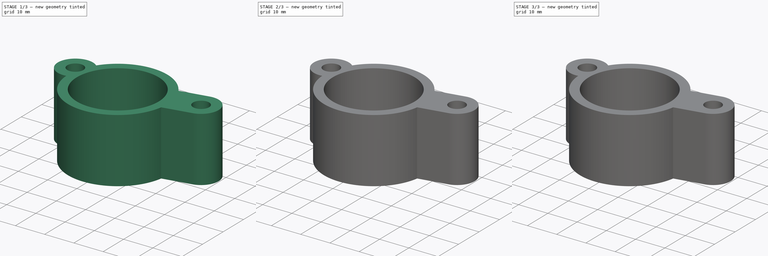
[diagram: build sequence overview — one tinted view per stage of 3, left to right]
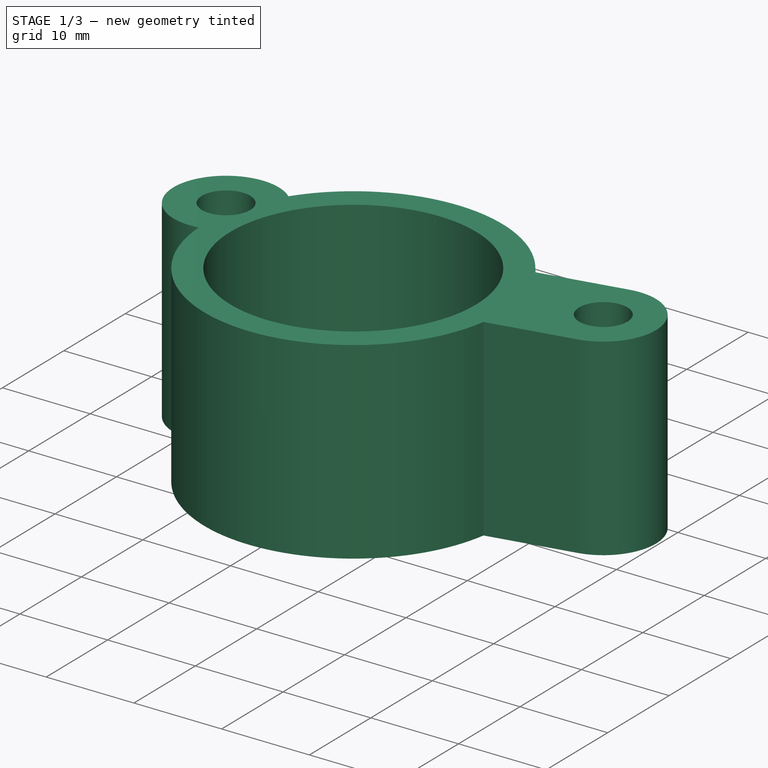
[diagram: stage 1 of 3 — iso view after this stage's code; geometry added in this stage tinted green]
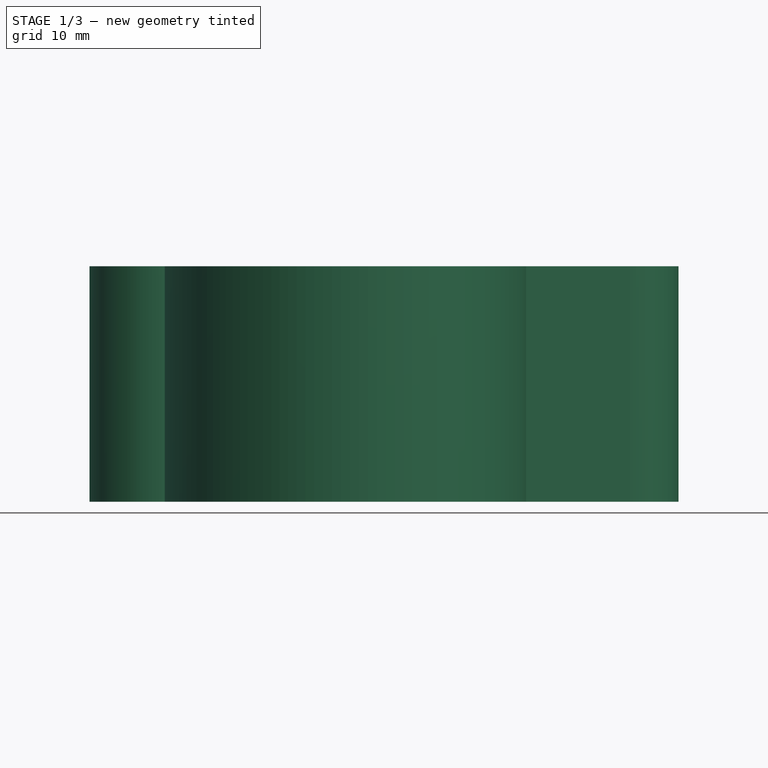
[diagram: stage 1 of 3 — front view after this stage's code; geometry added in this stage tinted green]
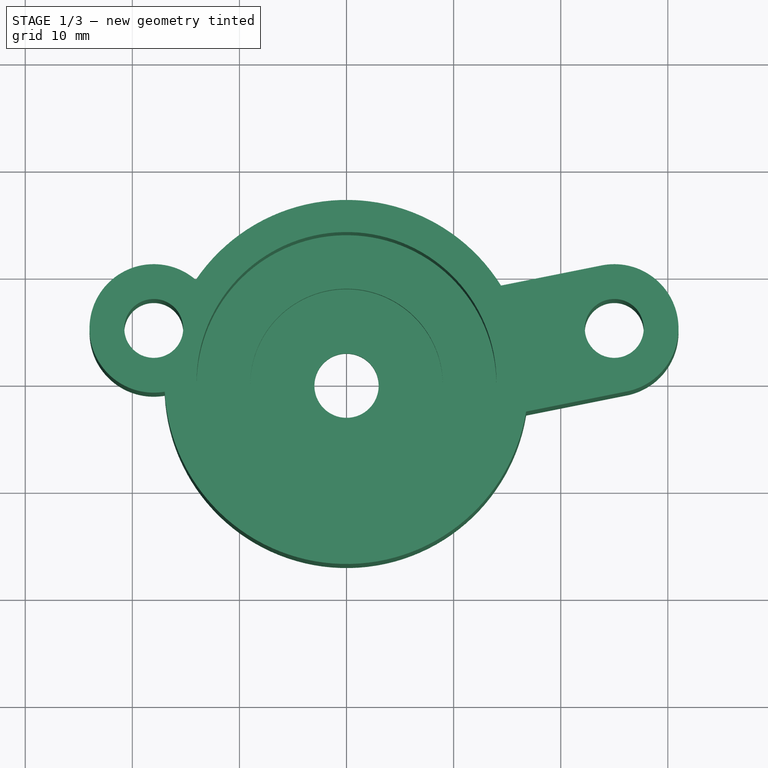
[diagram: stage 1 of 3 — top view after this stage's code; geometry added in this stage tinted green]
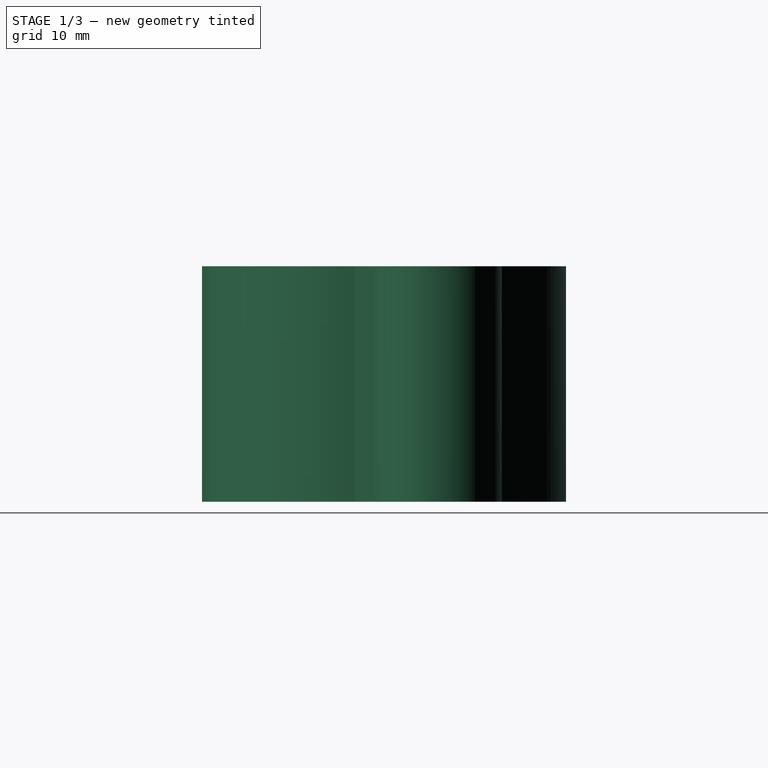
[diagram: stage 1 of 3 — right view after this stage's code; geometry added in this stage tinted green]
FCSTD DOCUMENT  (FreeCAD 0.19R24276 (Git))
Label: Encoder_holder_V3
License: All rights reserved
LicenseURL: http://en.wikipedia.org/wiki/All_rights_reserved
objects: Sketcher::SketchObject×5, PartDesign::Pad×4, PartDesign::Chamfer×2, PartDesign::Pocket×1, PartDesign::Fillet×1, PartDesign::Body×1
note: 22 computed .brp shape members not serialized (recipe doc carries the construction recipe); baked Part::Feature solids carry a one-line shape summary decoded from their .brp

FEATURE [Sketcher::SketchObject] Sketch  label="Sketch_L80x120"
  FullyConstrained = false
  MapMode = 5
  Support = -> [XY_Plane]
  sketch-geometry (20):
    g0: Circle CenterX=0 CenterY=0 CenterZ=0 NormalX=0 NormalY=0 NormalZ=1 AngleXU=0 Radius=14
    g1: LineSegment StartX=55 StartY=10 StartZ=0 EndX=-25 EndY=10 EndZ=0
    g2: Circle CenterX=-10 CenterY=33 CenterZ=0 NormalX=0 NormalY=0 NormalZ=1 AngleXU=0 Radius=3
    g3: Circle CenterX=40 CenterY=33 CenterZ=0 NormalX=0 NormalY=0 NormalZ=1 AngleXU=0 Radius=3
    g4: Circle CenterX=0 CenterY=0 CenterZ=0 NormalX=0 NormalY=0 NormalZ=1 AngleXU=0 Radius=16.5
    g5: LineSegment StartX=-25 StartY=-30 StartZ=0 EndX=35 EndY=-30 EndZ=0
    g6: LineSegment StartX=35 StartY=-30 StartZ=0 EndX=35 EndY=10 EndZ=0
    g7: LineSegment StartX=35 StartY=10 StartZ=0 EndX=55 EndY=10 EndZ=0
    g8: Circle CenterX=25 CenterY=5 CenterZ=0 NormalX=0 NormalY=0 NormalZ=1 AngleXU=0 Radius=2.75
    g9: Circle CenterX=-18 CenterY=5 CenterZ=0 NormalX=0 NormalY=0 NormalZ=1 AngleXU=0 Radius=2.75
    g10: LineSegment StartX=-25 StartY=-30 StartZ=0 EndX=-25 EndY=34.1155 EndZ=0
    g11: LineSegment StartX=55 StartY=10 StartZ=0 EndX=55 EndY=18.052 EndZ=0
    g12: ArcOfCircle CenterX=-18 CenterY=5 CenterZ=0 NormalX=0 NormalY=0 NormalZ=1 AngleXU=0 Radius=6 StartAngle=0.857316 EndAngle=4.88398
    g13: ArcOfCircle CenterX=25 CenterY=5 CenterZ=0 NormalX=0 NormalY=0 NormalZ=1 AngleXU=0 Radius=6 StartAngle=4.90978 EndAngle=8.05138
    g14: ArcOfCircle CenterX=0 CenterY=0 CenterZ=0 NormalX=0 NormalY=0 NormalZ=1 AngleXU=0 Radius=17 StartAngle=0.558108 EndAngle=2.54603
    g15: LineSegment StartX=23.8233 StartY=10.8835 StartZ=0 EndX=14.4204 EndY=9.0029 EndZ=0
    g16: LineSegment StartX=16.7738 StartY=-2.76407 StartZ=0 EndX=26.1767 EndY=-0.883484 EndZ=0
    g17: LineSegment StartX=25 StartY=5 StartZ=0 EndX=0 EndY=0 EndZ=0
    g18: LineSegment StartX=25 StartY=5 StartZ=0 EndX=26.1767 EndY=-0.883484 EndZ=0
    g19: ArcOfCircle CenterX=0 CenterY=0 CenterZ=0 NormalX=0 NormalY=0 NormalZ=1 AngleXU=0 Radius=17 StartAngle=3.19526 EndAngle=6.11987
  constraints (54):
    c: Diameter(g0) = 28
    c: Horizontal(g1)
    c: Horizontal(g2,g3)
    c: Diameter(g2) = 6
    c: Equal(g2,g3)
    c: DistanceX(g3,g1) = 15
    c: DistanceX(g1,g2) = 15
    c: Coincident(g4,g0)
    c: Horizontal(g5)
    c: Coincident(g6,g5)
    c: Vertical(g6)
    c: Coincident(g7,g6)
    c: Horizontal(g7)
    c: DistanceX(g7,g7) = 20
    c: Diameter(g8) = 5.5
    c: DistanceX(g8,g5) = 10
    c: DistanceY(g0,g8) = 5
    c: Equal(g9,g8)
    c: Horizontal(g9,g8)
    c: DistanceX(g9,g0) = 18
    c: Coincident(g10,g5)
    c: Vertical(g10)
    c: Coincident(g11,g7)
    c: Vertical(g11)
    c: DistanceY(g0,g6) = 10
    c: Horizontal(g1,g6)
    c: DistanceY(g0,g2) = 33
    c: DistanceY(g5,g0) = 30
    c: DistanceX(g9,g8) = 43
    c: DistanceX(g9,g2) = 8
    c: DistanceX(g2,g3) = 50
    c: Coincident(g0,g-1)
    c: Diameter(g4) = 33
    c: Coincident(g12,g9)
    c: Diameter(g12) = 12
    c: Coincident(g13,g8)
    c: Equal(g13,g12)
    c: Coincident(g14,g0)
    c: Diameter(g14) = 34
    c: Coincident(g17,g8)
    c: Coincident(g17,g0)
    c: Parallel(g15,g17)
    c: Parallel(g16,g17)
    c: Coincident(g18,g8)
    c: Coincident(g18,g16)
    c: Perpendicular(g18,g16)
    c: Coincident(g14,g15)
    c: Coincident(g19,g16)
    c: Coincident(g13,g16)
    c: Equal(g14,g19)
    c: Coincident(g14,g12)
    c: Coincident(g14,g19)
    c: Tangent(g13,g15) = -1.5708
    c: Coincident(g12,g19)
FEATURE [PartDesign::Pad] Pad  label="Pad_h17"
  Direction = (1,1,1)
  Length = 17
  Length2 = 100
  Profile = -> Sketch
  Reversed = true
  Type = 0
FEATURE [Sketcher::SketchObject] Sketch001  label="Sketch_1"
  AttachmentOffset = pos=(0,0,-17) rot=(0,0,1;0rad)
  FullyConstrained = false
  MapMode = 5
  Placement = pos=(0,0,-17) rot=(0,0,1;0rad)
  Support = -> [XY_Plane]
  sketch-geometry (20):
    g0: Circle CenterX=0 CenterY=0 CenterZ=0 NormalX=0 NormalY=0 NormalZ=1 AngleXU=0 Radius=9
    g1: LineSegment StartX=55 StartY=10 StartZ=0 EndX=-25 EndY=10 EndZ=0
    g2: Circle CenterX=-10 CenterY=33 CenterZ=0 NormalX=0 NormalY=0 NormalZ=1 AngleXU=0 Radius=3
    g3: Circle CenterX=40 CenterY=33 CenterZ=0 NormalX=0 NormalY=0 NormalZ=1 AngleXU=0 Radius=3
    g4: Circle CenterX=0 CenterY=0 CenterZ=0 NormalX=0 NormalY=0 NormalZ=1 AngleXU=0 Radius=16.5
    g5: LineSegment StartX=-25 StartY=-30 StartZ=0 EndX=35 EndY=-30 EndZ=0
    g6: LineSegment StartX=35 StartY=-30 StartZ=0 EndX=35 EndY=10 EndZ=0
    g7: LineSegment StartX=35 StartY=10 StartZ=0 EndX=55 EndY=10 EndZ=0
    g8: Circle CenterX=25 CenterY=5 CenterZ=0 NormalX=0 NormalY=0 NormalZ=1 AngleXU=0 Radius=2.75
    g9: Circle CenterX=-18 CenterY=5 CenterZ=0 NormalX=0 NormalY=0 NormalZ=1 AngleXU=0 Radius=2.75
    g10: LineSegment StartX=-25 StartY=-30 StartZ=0 EndX=-25 EndY=34.1155 EndZ=0
    g11: LineSegment StartX=55 StartY=10 StartZ=0 EndX=55 EndY=18.052 EndZ=0
    g12: ArcOfCircle CenterX=-18 CenterY=5 CenterZ=0 NormalX=0 NormalY=0 NormalZ=1 AngleXU=0 Radius=6 StartAngle=0.857316 EndAngle=4.88398
    g13: ArcOfCircle CenterX=25 CenterY=5 CenterZ=0 NormalX=0 NormalY=0 NormalZ=1 AngleXU=0 Radius=6 StartAngle=4.90978 EndAngle=8.05138
    g14: ArcOfCircle CenterX=0 CenterY=0 CenterZ=0 NormalX=0 NormalY=0 NormalZ=1 AngleXU=0 Radius=17 StartAngle=0.558108 EndAngle=2.54603
    g15: LineSegment StartX=23.8233 StartY=10.8835 StartZ=0 EndX=14.4204 EndY=9.0029 EndZ=0
    g16: LineSegment StartX=16.7738 StartY=-2.76407 StartZ=0 EndX=26.1767 EndY=-0.883484 EndZ=0
    g17: LineSegment StartX=25 StartY=5 StartZ=0 EndX=0 EndY=0 EndZ=0
    g18: LineSegment StartX=25 StartY=5 StartZ=0 EndX=26.1767 EndY=-0.883484 EndZ=0
    g19: ArcOfCircle CenterX=0 CenterY=0 CenterZ=0 NormalX=0 NormalY=0 NormalZ=1 AngleXU=0 Radius=17 StartAngle=3.19526 EndAngle=6.11987
  constraints (54):
    c: Diameter(g0) = 18
    c: Horizontal(g1)
    c: Horizontal(g2,g3)
    c: Diameter(g2) = 6
    c: Equal(g2,g3)
    c: DistanceX(g3,g1) = 15
    c: DistanceX(g1,g2) = 15
    c: Coincident(g4,g0)
    c: Horizontal(g5)
    c: Coincident(g6,g5)
    c: Vertical(g6)
    c: Coincident(g7,g6)
    c: Horizontal(g7)
    c: DistanceX(g7,g7) = 20
    c: Diameter(g8) = 5.5
    c: DistanceX(g8,g5) = 10
    c: DistanceY(g0,g8) = 5
    c: Equal(g9,g8)
    c: Horizontal(g9,g8)
    c: DistanceX(g9,g0) = 18
    c: Coincident(g10,g5)
    c: Vertical(g10)
    c: Coincident(g11,g7)
    c: Vertical(g11)
    c: DistanceY(g0,g6) = 10
    c: Horizontal(g1,g6)
    c: DistanceY(g0,g2) = 33
    c: DistanceY(g5,g0) = 30
    c: DistanceX(g9,g8) = 43
    c: DistanceX(g9,g2) = 8
    c: DistanceX(g2,g3) = 50
    c: Coincident(g0,g-1)
    c: Diameter(g4) = 33
    c: Coincident(g12,g9)
    c: Diameter(g12) = 12
    c: Coincident(g13,g8)
    c: Equal(g13,g12)
    c: Coincident(g14,g0)
    c: Diameter(g14) = 34
    c: Coincident(g17,g8)
    c: Coincident(g17,g0)
    c: Parallel(g15,g17)
    c: Parallel(g16,g17)
    c: Coincident(g18,g8)
    c: Coincident(g18,g16)
    c: Perpendicular(g18,g16)
    c: Coincident(g14,g15)
    c: Coincident(g19,g16)
    c: Coincident(g13,g16)
    c: Equal(g14,g19)
    c: Coincident(g14,g12)
    c: Coincident(g14,g19)
    c: Tangent(g13,g15) = -1.5708
    c: Coincident(g12,g19)
FEATURE [Sketcher::SketchObject] Sketch002  label="Sketch_002"
  AttachmentOffset = pos=(0,0,-20) rot=(0,0,1;0rad)
  FullyConstrained = false
  MapMode = 5
  Placement = pos=(0,0,-20) rot=(0,0,1;0rad)
  Support = -> [XY_Plane]
  sketch-geometry (20):
    g0: Circle CenterX=0 CenterY=0 CenterZ=0 NormalX=0 NormalY=0 NormalZ=1 AngleXU=0 Radius=3
    g1: LineSegment StartX=55 StartY=10 StartZ=0 EndX=-25 EndY=10 EndZ=0
    g2: Circle CenterX=-10 CenterY=33 CenterZ=0 NormalX=0 NormalY=0 NormalZ=1 AngleXU=0 Radius=3
    g3: Circle CenterX=40 CenterY=33 CenterZ=0 NormalX=0 NormalY=0 NormalZ=1 AngleXU=0 Radius=3
    g4: Circle CenterX=0 CenterY=0 CenterZ=0 NormalX=0 NormalY=0 NormalZ=1 AngleXU=0 Radius=16.5
    g5: LineSegment StartX=-25 StartY=-30 StartZ=0 EndX=35 EndY=-30 EndZ=0
    g6: LineSegment StartX=35 StartY=-30 StartZ=0 EndX=35 EndY=10 EndZ=0
    g7: LineSegment StartX=35 StartY=10 StartZ=0 EndX=55 EndY=10 EndZ=0
    g8: Circle CenterX=25 CenterY=5 CenterZ=0 NormalX=0 NormalY=0 NormalZ=1 AngleXU=0 Radius=2.75
    g9: Circle CenterX=-18 CenterY=5 CenterZ=0 NormalX=0 NormalY=0 NormalZ=1 AngleXU=0 Radius=2.75
    g10: LineSegment StartX=-25 StartY=-30 StartZ=0 EndX=-25 EndY=34.1155 EndZ=0
    g11: LineSegment StartX=55 StartY=10 StartZ=0 EndX=55 EndY=18.052 EndZ=0
    g12: ArcOfCircle CenterX=-18 CenterY=5 CenterZ=0 NormalX=0 NormalY=0 NormalZ=1 AngleXU=0 Radius=6 StartAngle=0.857316 EndAngle=4.88398
    g13: ArcOfCircle CenterX=25 CenterY=5 CenterZ=0 NormalX=0 NormalY=0 NormalZ=1 AngleXU=0 Radius=6 StartAngle=4.90978 EndAngle=8.05138
    g14: ArcOfCircle CenterX=0 CenterY=0 CenterZ=0 NormalX=0 NormalY=0 NormalZ=1 AngleXU=0 Radius=17 StartAngle=0.558108 EndAngle=2.54603
    g15: LineSegment StartX=23.8233 StartY=10.8835 StartZ=0 EndX=14.4204 EndY=9.0029 EndZ=0
    g16: LineSegment StartX=16.7738 StartY=-2.76407 StartZ=0 EndX=26.1767 EndY=-0.883484 EndZ=0
    g17: LineSegment StartX=25 StartY=5 StartZ=0 EndX=0 EndY=0 EndZ=0
    g18: LineSegment StartX=25 StartY=5 StartZ=0 EndX=26.1767 EndY=-0.883484 EndZ=0
    g19: ArcOfCircle CenterX=0 CenterY=0 CenterZ=0 NormalX=0 NormalY=0 NormalZ=1 AngleXU=0 Radius=17 StartAngle=3.19526 EndAngle=6.11987
  constraints (54):
    c: Diameter(g0) = 6
    c: Horizontal(g1)
    c: Horizontal(g2,g3)
    c: Diameter(g2) = 6
    c: Equal(g2,g3)
    c: DistanceX(g3,g1) = 15
    c: DistanceX(g1,g2) = 15
    c: Coincident(g4,g0)
    c: Horizontal(g5)
    c: Coincident(g6,g5)
    c: Vertical(g6)
    c: Coincident(g7,g6)
    c: Horizontal(g7)
    c: DistanceX(g7,g7) = 20
    c: Diameter(g8) = 5.5
    c: DistanceX(g8,g5) = 10
    c: DistanceY(g0,g8) = 5
    c: Equal(g9,g8)
    c: Horizontal(g9,g8)
    c: DistanceX(g9,g0) = 18
    c: Coincident(g10,g5)
    c: Vertical(g10)
    c: Coincident(g11,g7)
    c: Vertical(g11)
    c: DistanceY(g0,g6) = 10
    c: Horizontal(g1,g6)
    c: DistanceY(g0,g2) = 33
    c: DistanceY(g5,g0) = 30
    c: DistanceX(g9,g8) = 43
    c: DistanceX(g9,g2) = 8
    c: DistanceX(g2,g3) = 50
    c: Coincident(g0,g-1)
    c: Diameter(g4) = 33
    c: Coincident(g12,g9)
    c: Diameter(g12) = 12
    c: Coincident(g13,g8)
    c: Equal(g13,g12)
    c: Coincident(g14,g0)
    c: Diameter(g14) = 34
    c: Coincident(g17,g8)
    c: Coincident(g17,g0)
    c: Parallel(g15,g17)
    c: Parallel(g16,g17)
    c: Coincident(g18,g8)
    c: Coincident(g18,g16)
    c: Perpendicular(g18,g16)
    c: Coincident(g14,g15)
    c: Coincident(g19,g16)
    c: Coincident(g13,g16)
    c: Equal(g14,g19)
    c: Coincident(g14,g12)
    c: Coincident(g14,g19)
    c: Tangent(g13,g15) = -1.5708
    c: Coincident(g12,g19)
FEATURE [PartDesign::Pad] Pad001
  BaseFeature = -> Pad
  Direction = (1,1,1)
  Length = 3
  Length2 = 100
  Profile = -> Sketch001
  Reversed = true
  Type = 0
FEATURE [PartDesign::Pad] Pad002
  BaseFeature = -> Pad001
  Direction = (1,1,1)
  Length = 2
  Length2 = 100
  Profile = -> Sketch002
  Reversed = true
  Type = 0
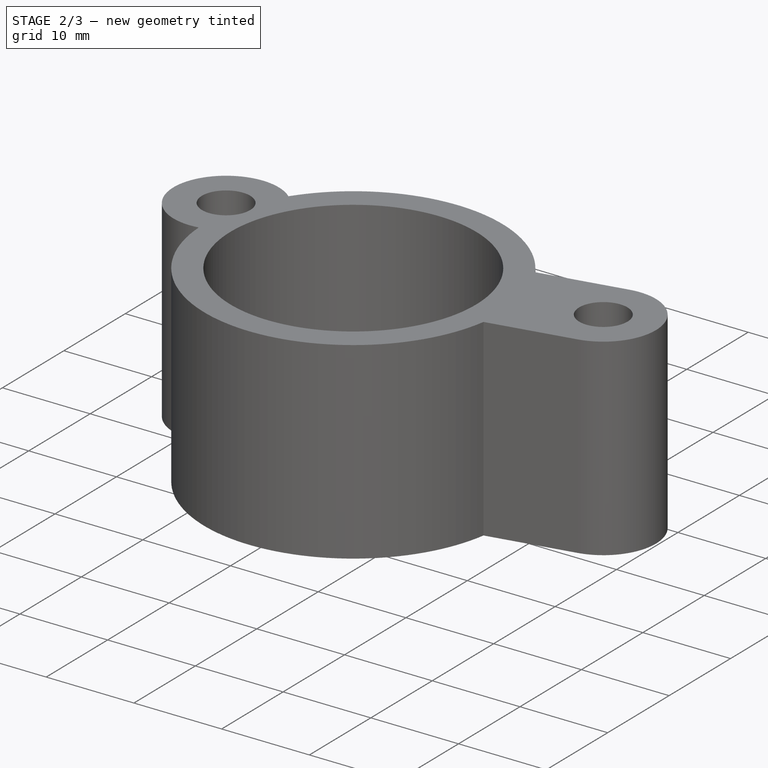
[diagram: stage 2 of 3 — iso view after this stage's code; geometry added in this stage tinted green]
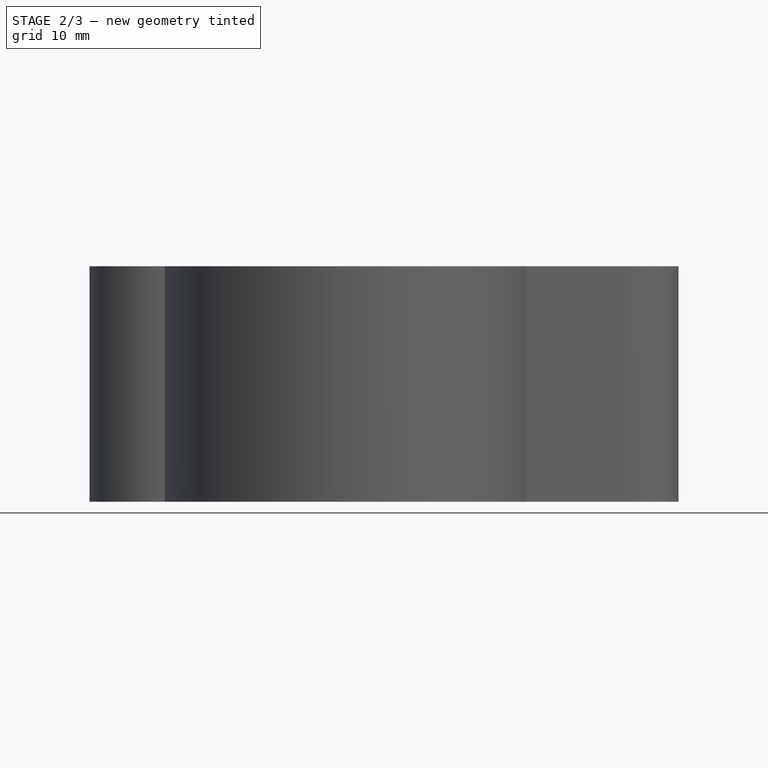
[diagram: stage 2 of 3 — front view after this stage's code; geometry added in this stage tinted green]
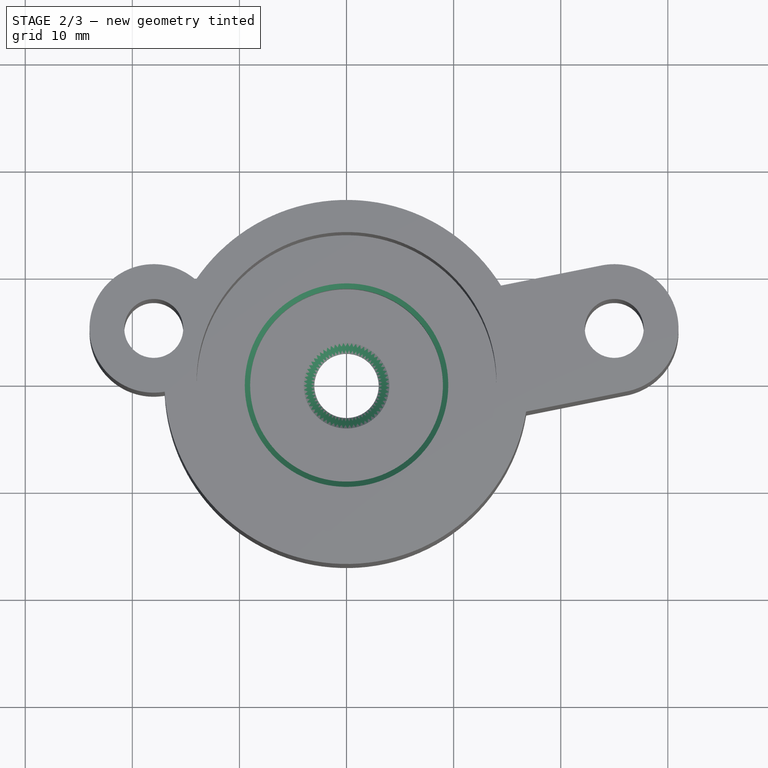
[diagram: stage 2 of 3 — top view after this stage's code; geometry added in this stage tinted green]
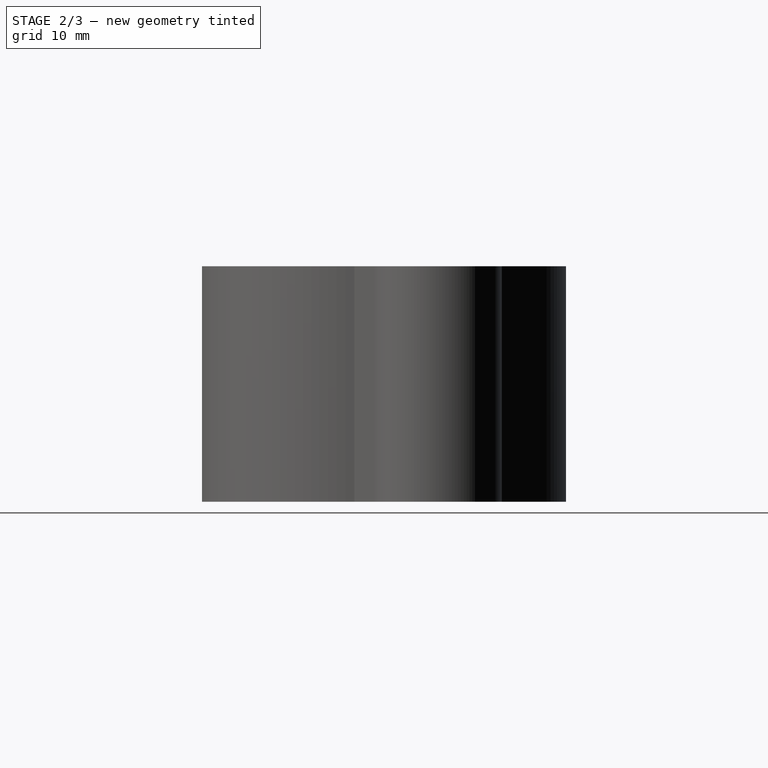
[diagram: stage 2 of 3 — right view after this stage's code; geometry added in this stage tinted green]
FEATURE [PartDesign::Chamfer] Chamfer
  Angle = 45
  Base = -> Pad002 [Edge47]
  BaseFeature = -> Pad002
  ChamferType = 0
  FlipDirection = false
  Size = 0.5
  Size2 = 1
  SupportTransform = false
FEATURE [PartDesign::Chamfer] Chamfer001
  Angle = 45
  Base = -> Chamfer [Edge17]
  BaseFeature = -> Chamfer
  ChamferType = 0
  FlipDirection = false
  Size = 1
  Size2 = 1
  SupportTransform = false
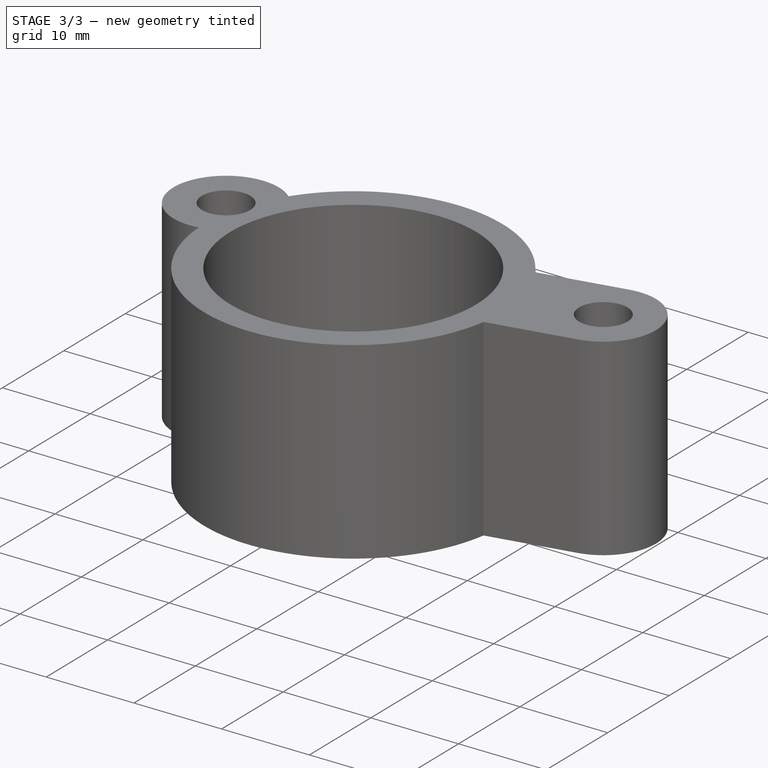
[diagram: stage 3 of 3 — iso view after this stage's code; geometry added in this stage tinted green]
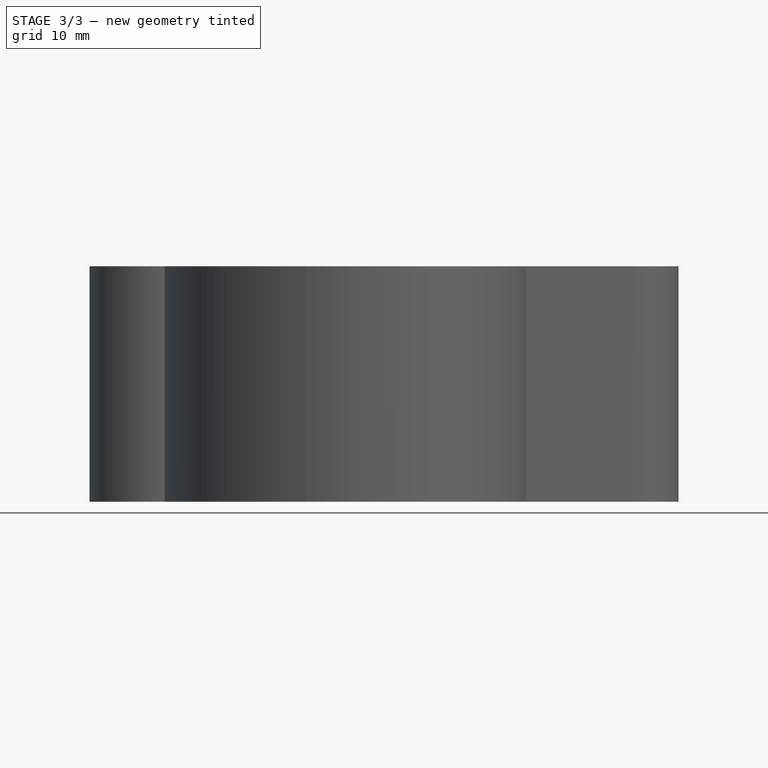
[diagram: stage 3 of 3 — front view after this stage's code; geometry added in this stage tinted green]
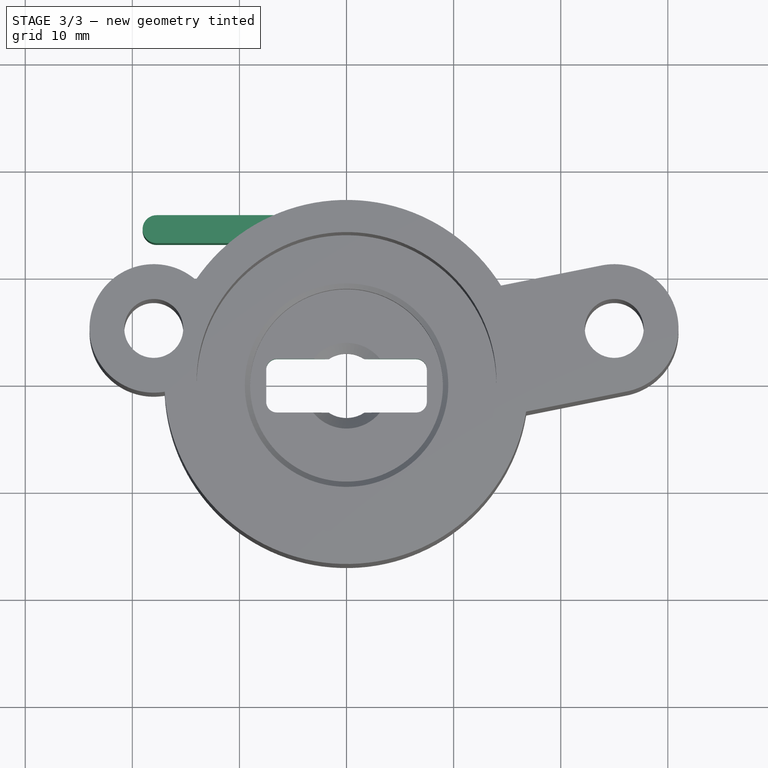
[diagram: stage 3 of 3 — top view after this stage's code; geometry added in this stage tinted green]
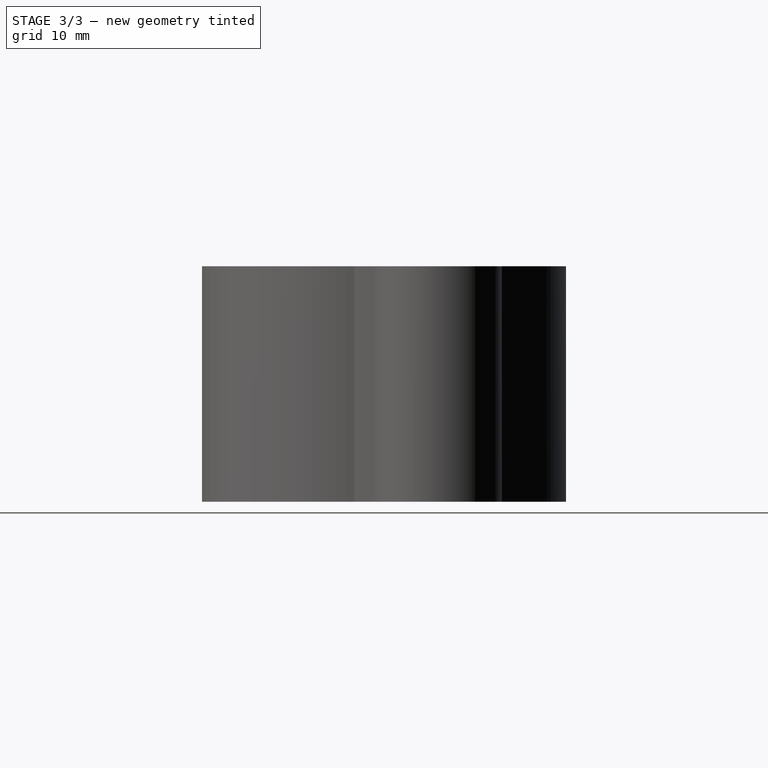
[diagram: stage 3 of 3 — right view after this stage's code; geometry added in this stage tinted green]
FEATURE [Sketcher::SketchObject] Sketch003
  FullyConstrained = true
  MapMode = 5
  Placement = pos=(0,0,-22) rot=(1,0,0;3.14159rad)
  Support = -> [Chamfer001]
  sketch-geometry (4):
    g0: LineSegment StartX=-7.5 StartY=2.5 StartZ=0 EndX=7.5 EndY=2.5 EndZ=0
    g1: LineSegment StartX=7.5 StartY=2.5 StartZ=0 EndX=7.5 EndY=-2.5 EndZ=0
    g2: LineSegment StartX=7.5 StartY=-2.5 StartZ=0 EndX=-7.5 EndY=-2.5 EndZ=0
    g3: LineSegment StartX=-7.5 StartY=-2.5 StartZ=0 EndX=-7.5 EndY=2.5 EndZ=0
  constraints (11):
    c: Coincident(g0,g1)
    c: Coincident(g1,g2)
    c: Coincident(g2,g3)
    c: Coincident(g3,g0)
    c: Horizontal(g0)
    c: Horizontal(g2)
    c: Vertical(g1)
    c: Vertical(g3)
    c: Symmetric(g0,g1,g-1)
    c: DistanceY(g1,g1) = 5
    c: DistanceX(g0,g0) = 15
FEATURE [PartDesign::Pocket] Pocket
  BaseFeature = -> Chamfer001
  Length = 5
  Length2 = 100
  Profile = -> Sketch003
  Type = 1
FEATURE [PartDesign::Fillet] Fillet
  Base = -> Pocket [Edge19,Edge26,Edge29,Edge16]
  BaseFeature = -> Pocket
  Radius = 1
  SupportTransform = false
FEATURE [Sketcher::SketchObject] Sketch004
  FullyConstrained = false
  MapMode = 5
  Placement = pos=(0,0,-22) rot=(1,0,0;3.14159rad)
  Support = -> [Fillet]
  sketch-geometry (4):
    g0: ArcOfCircle CenterX=-17.738 CenterY=-14.4792 CenterZ=0 NormalX=0 NormalY=0 NormalZ=1 AngleXU=0 Radius=1.30406 StartAngle=1.5708 EndAngle=4.71239
    g1: ArcOfCircle CenterX=-5.03396 CenterY=-14.4792 CenterZ=0 NormalX=0 NormalY=0 NormalZ=1 AngleXU=0 Radius=1.30406 StartAngle=4.71239 EndAngle=7.85398
    g2: LineSegment StartX=-17.738 StartY=-15.7833 StartZ=0 EndX=-5.03396 EndY=-15.7833 EndZ=0
    g3: LineSegment StartX=-17.738 StartY=-13.1752 StartZ=0 EndX=-5.03396 EndY=-13.1752 EndZ=0
  constraints (6):
    c: Tangent(g0,g3) = 1.5708
    c: Tangent(g0,g2) = -1.5708
    c: Tangent(g2,g1) = -1.5708
    c: Tangent(g3,g1) = 1.5708
    c: Horizontal(g2)
    c: Equal(g0,g1)
FEATURE [PartDesign::Pad] Pad003
  BaseFeature = -> Fillet
  Direction = (1,1,1)
  Length = 10
  Length2 = 100
  Profile = -> Sketch004
  Reversed = true
  Type = 0
FEATURE [PartDesign::Body] Body
  Group = -> [Sketch,Pad,Sketch001,Sketch002,Pad001,Pad002,Chamfer,Chamfer001,Sketch003,Pocket,Fillet,Sketch004,Pad003]
  Origin = -> Origin
  Tip = -> Pad003
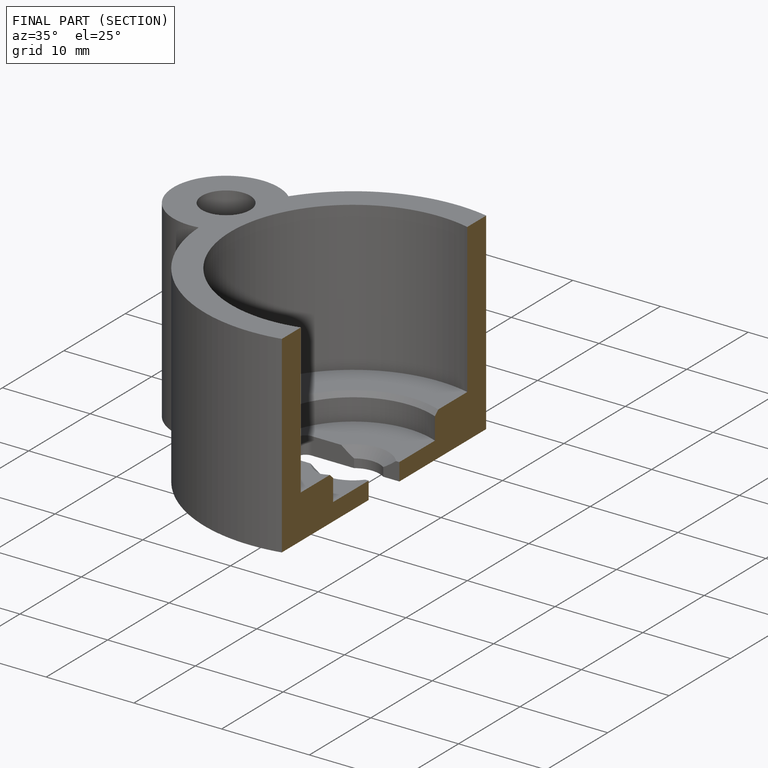
[diagram: finished part — half-section view (interior)]
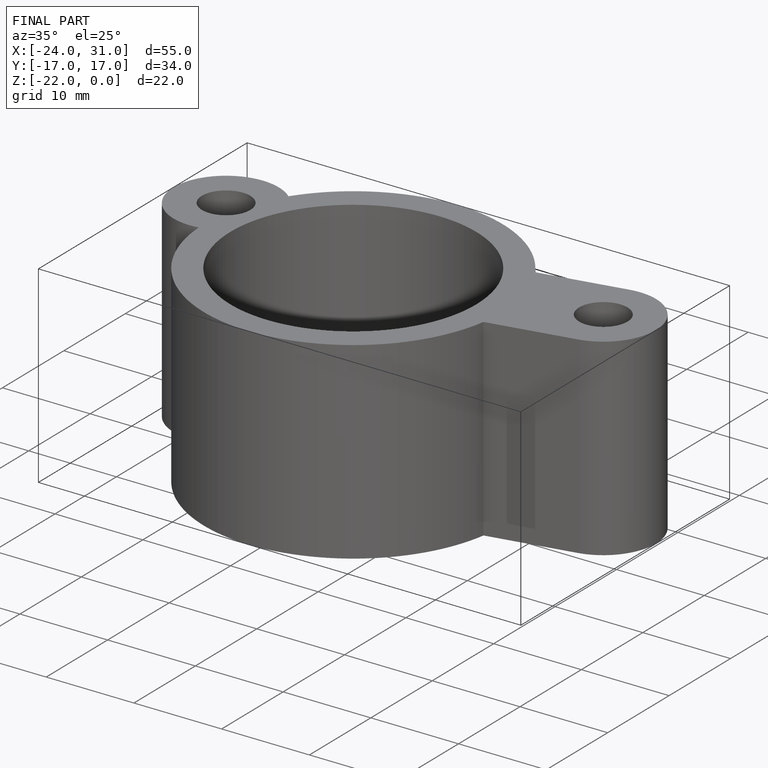
[diagram: finished part — iso view with bounding-box wireframe]
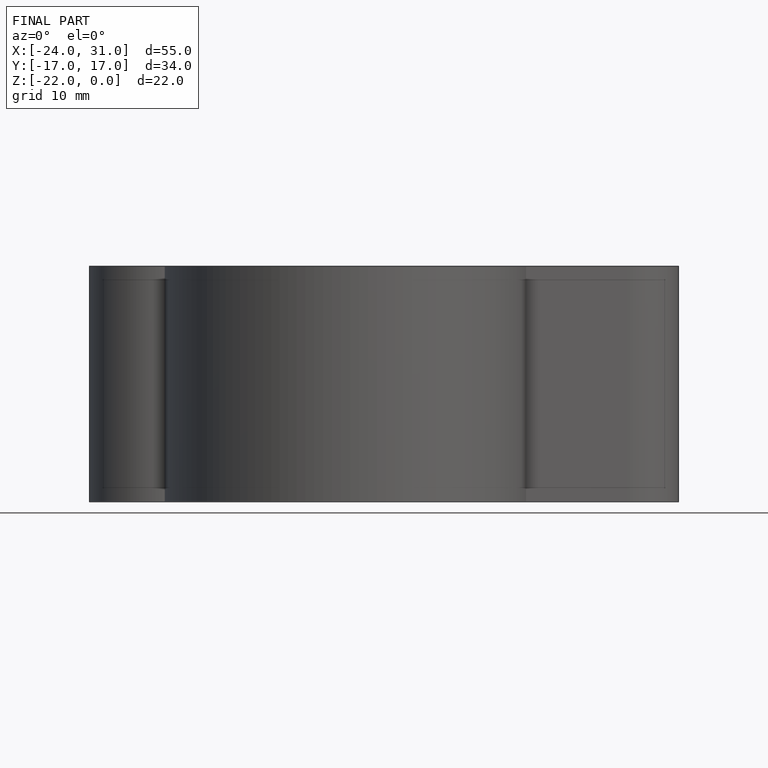
[diagram: finished part — front view with bounding-box wireframe]
